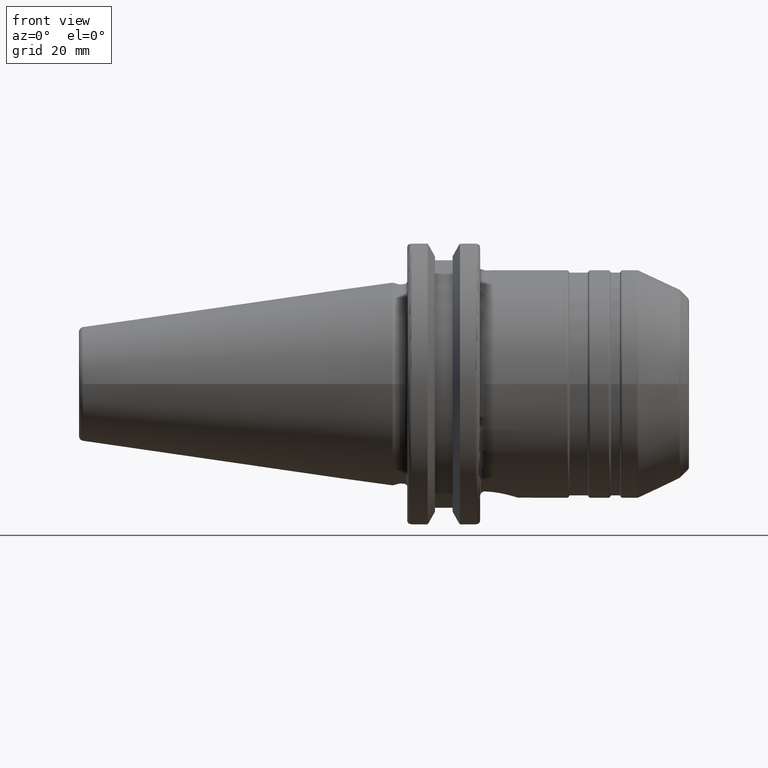
[diagram: clean part render]
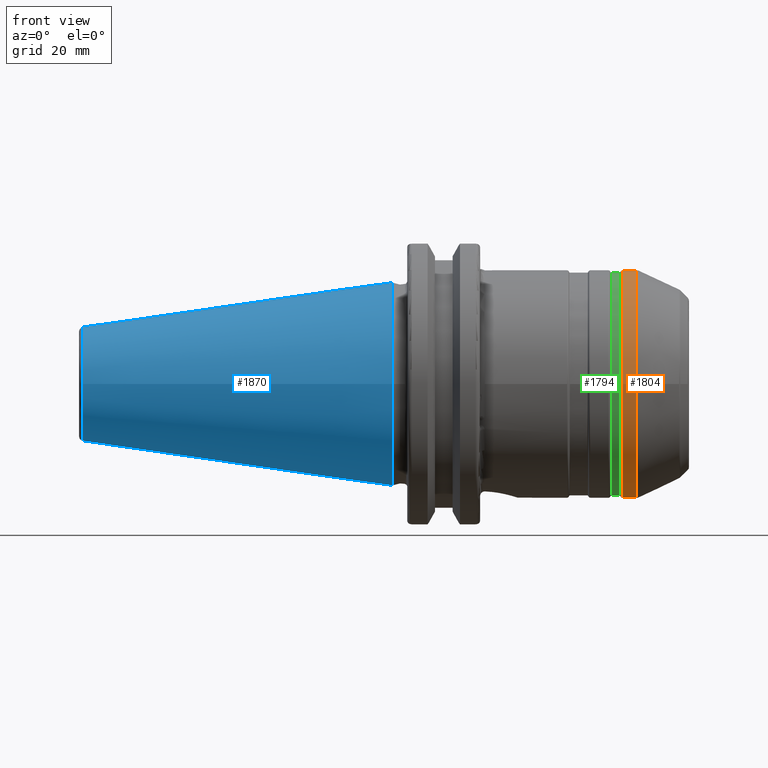
[diagram: same view with three faces highlighted in distinct colors, each labeled with its STEP entity id]
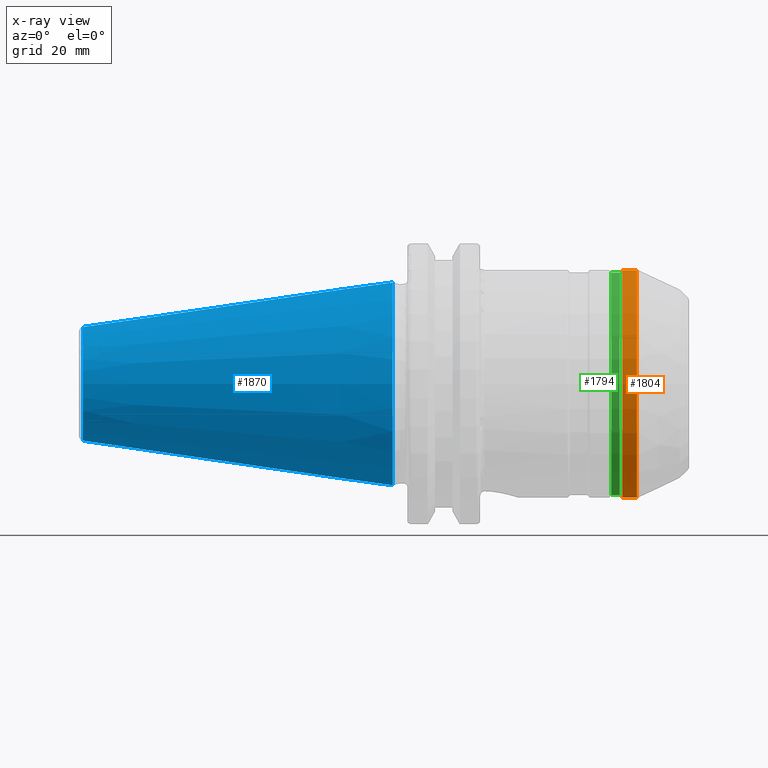
[diagram: x-ray of the same camera — body ghosted, the three highlighted faces saturated]
A machine part, front view with three faces highlighted in distinct colors.
The next image is the same camera in x-ray (body ghosted, the three faces saturated) — at least one of them is partly hidden behind the body in this view.
Their STEP definitions:

[orange] entity #1804 — the highlighted cylindrical surface (bore or boss wall) has radius 24.75 mm, axis along (1, 0, 0).
#167=LINE('',#2851,#256);
#256=VECTOR('',#2271,24.75);
#341=CYLINDRICAL_SURFACE('',#1964,24.75);
#381=FACE_OUTER_BOUND('',#487,.T.);
#487=EDGE_LOOP('',(#1263,#1264,#1265,#1266,#1267,#1268));
#625=CIRCLE('',#1961,24.75);
#626=CIRCLE('',#1962,24.75);
#628=CIRCLE('',#1965,24.75);
#629=CIRCLE('',#1966,24.75);
#744=VERTEX_POINT('',#2842);
#745=VERTEX_POINT('',#2843);
#746=VERTEX_POINT('',#2848);
#747=VERTEX_POINT('',#2849);
#943=EDGE_CURVE('',#744,#745,#625,.T.);
#944=EDGE_CURVE('',#745,#744,#626,.T.);
#946=EDGE_CURVE('',#746,#747,#628,.T.);
#947=EDGE_CURVE('',#746,#745,#167,.T.);
#948=EDGE_CURVE('',#747,#746,#629,.T.);
#1263=ORIENTED_EDGE('',*,*,#946,.F.);
#1264=ORIENTED_EDGE('',*,*,#947,.T.);
#1265=ORIENTED_EDGE('',*,*,#943,.F.);
#1266=ORIENTED_EDGE('',*,*,#944,.F.);
#1267=ORIENTED_EDGE('',*,*,#947,.F.);
#1268=ORIENTED_EDGE('',*,*,#948,.F.);
#1804=ADVANCED_FACE('',(#381),#341,.T.);
#1961=AXIS2_PLACEMENT_3D('',#2844,#2261,#2262);
#1962=AXIS2_PLACEMENT_3D('',#2845,#2263,#2264);
#1964=AXIS2_PLACEMENT_3D('',#2847,#2267,#2268);
#1965=AXIS2_PLACEMENT_3D('',#2850,#2269,#2270);
#1966=AXIS2_PLACEMENT_3D('',#2852,#2272,#2273);
#2261=DIRECTION('center_axis',(-1.,0.,0.));
#2262=DIRECTION('ref_axis',(0.,-1.,1.83697019872103E-16));
#2263=DIRECTION('center_axis',(-1.,0.,0.));
#2264=DIRECTION('ref_axis',(0.,-1.,1.83697019872103E-16));
#2267=DIRECTION('center_axis',(1.,0.,0.));
#2268=DIRECTION('ref_axis',(0.,1.,0.));
#2269=DIRECTION('center_axis',(1.,0.,0.));
#2270=DIRECTION('ref_axis',(0.,-1.,1.83697019872103E-16));
#2271=DIRECTION('',(-1.,0.,0.));
#2272=DIRECTION('center_axis',(1.,0.,0.));
#2273=DIRECTION('ref_axis',(0.,-1.,1.83697019872103E-16));
#2842=CARTESIAN_POINT('',(50.0196152422707,-3.0310008278897E-15,24.75));
#2843=CARTESIAN_POINT('',(50.0196152422707,-24.75,-3.0310008278897E-15));
#2844=CARTESIAN_POINT('Origin',(50.0196152422707,0.,0.));
#2845=CARTESIAN_POINT('Origin',(50.0196152422707,0.,0.));
#2847=CARTESIAN_POINT('Origin',(51.5872603612146,0.,0.));
#2848=CARTESIAN_POINT('',(53.1641509251914,-24.75,-3.0310008278897E-15));
#2849=CARTESIAN_POINT('',(53.1641509251914,-3.0310008278897E-15,24.75));
#2850=CARTESIAN_POINT('Origin',(53.1641509251914,0.,0.));
#2851=CARTESIAN_POINT('',(51.5872603612146,-24.75,-3.0310008278897E-15));
#2852=CARTESIAN_POINT('Origin',(53.1641509251914,0.,0.));

[blue] entity #1870 — the highlighted conical surface has half-angle 8.297 deg.
#153=CONICAL_SURFACE('',#2130,17.2484375,0.144812498238939);
#232=LINE('',#3782,#321);
#321=VECTOR('',#2668,17.2484375);
#447=FACE_OUTER_BOUND('',#566,.T.);
#566=EDGE_LOOP('',(#1640,#1641,#1642,#1643,#1644));
#699=CIRCLE('',#2124,12.3966635780937);
#700=CIRCLE('',#2125,12.3966635780937);
#704=CIRCLE('',#2131,22.225);
#889=VERTEX_POINT('',#3769);
#890=VERTEX_POINT('',#3770);
#893=VERTEX_POINT('',#3780);
#1152=EDGE_CURVE('',#889,#890,#699,.T.);
#1153=EDGE_CURVE('',#890,#889,#700,.T.);
#1157=EDGE_CURVE('',#893,#893,#704,.T.);
#1158=EDGE_CURVE('',#893,#890,#232,.T.);
#1640=ORIENTED_EDGE('',*,*,#1157,.F.);
#1641=ORIENTED_EDGE('',*,*,#1158,.T.);
#1642=ORIENTED_EDGE('',*,*,#1152,.F.);
#1643=ORIENTED_EDGE('',*,*,#1153,.F.);
#1644=ORIENTED_EDGE('',*,*,#1158,.F.);
#1870=ADVANCED_FACE('',(#447),#153,.T.);
#2124=AXIS2_PLACEMENT_3D('',#3771,#2652,#2653);
#2125=AXIS2_PLACEMENT_3D('',#3772,#2654,#2655);
#2130=AXIS2_PLACEMENT_3D('',#3779,#2664,#2665);
#2131=AXIS2_PLACEMENT_3D('',#3781,#2666,#2667);
#2652=DIRECTION('center_axis',(-1.,0.,0.));
#2653=DIRECTION('ref_axis',(0.,-1.,3.06161699786838E-17));
#2654=DIRECTION('center_axis',(-1.,0.,0.));
#2655=DIRECTION('ref_axis',(0.,-1.,3.06161699786838E-17));
#2664=DIRECTION('center_axis',(1.,0.,0.));
#2665=DIRECTION('ref_axis',(0.,1.,0.));
#2666=DIRECTION('center_axis',(1.,0.,0.));
#2667=DIRECTION('ref_axis',(0.,0.,-1.));
#2668=DIRECTION('',(-0.989532981063282,0.144306893071729,1.76724974695192E-17));
#3769=CARTESIAN_POINT('',(-67.3943068930717,-1.5181534371019E-15,12.3966635780937));
#3770=CARTESIAN_POINT('',(-67.3943068930718,-12.3966635780937,-1.5181534371019E-15));
#3771=CARTESIAN_POINT('Origin',(-67.3943068930717,0.,-1.89769179637738E-15));
#3772=CARTESIAN_POINT('Origin',(-67.3943068930717,0.,-1.89769179637738E-15));
#3779=CARTESIAN_POINT('Origin',(-34.125,0.,0.));
#3780=CARTESIAN_POINT('',(0.,-22.225,-2.72177751110499E-15));
#3781=CARTESIAN_POINT('Origin',(0.,0.,0.));
#3782=CARTESIAN_POINT('',(-34.125,-17.2484375,-2.11232437746682E-15));

[green] entity #1794 — the highlighted cylindrical surface (bore or boss wall) has radius 24.25 mm, axis along (1, 0, 0).
#161=LINE('',#2785,#250);
#250=VECTOR('',#2191,24.25);
#339=CYLINDRICAL_SURFACE('',#1928,24.25);
#371=FACE_OUTER_BOUND('',#477,.T.);
#477=EDGE_LOOP('',(#1203,#1204,#1205,#1206,#1207,#1208));
#597=CIRCLE('',#1923,24.25);
#601=CIRCLE('',#1927,24.25);
#602=CIRCLE('',#1929,24.25);
#603=CIRCLE('',#1930,24.25);
#720=VERTEX_POINT('',#2774);
#721=VERTEX_POINT('',#2775);
#724=VERTEX_POINT('',#2784);
#725=VERTEX_POINT('',#2786);
#909=EDGE_CURVE('',#720,#721,#597,.T.);
#913=EDGE_CURVE('',#721,#720,#601,.T.);
#914=EDGE_CURVE('',#720,#724,#161,.T.);
#915=EDGE_CURVE('',#725,#724,#602,.T.);
#916=EDGE_CURVE('',#724,#725,#603,.T.);
#1203=ORIENTED_EDGE('',*,*,#909,.F.);
#1204=ORIENTED_EDGE('',*,*,#914,.T.);
#1205=ORIENTED_EDGE('',*,*,#915,.F.);
#1206=ORIENTED_EDGE('',*,*,#916,.F.);
#1207=ORIENTED_EDGE('',*,*,#914,.F.);
#1208=ORIENTED_EDGE('',*,*,#913,.F.);
#1794=ADVANCED_FACE('',(#371),#339,.T.);
#1923=AXIS2_PLACEMENT_3D('',#2776,#2179,#2180);
#1927=AXIS2_PLACEMENT_3D('',#2782,#2187,#2188);
#1928=AXIS2_PLACEMENT_3D('',#2783,#2189,#2190);
#1929=AXIS2_PLACEMENT_3D('',#2787,#2192,#2193);
#1930=AXIS2_PLACEMENT_3D('',#2788,#2194,#2195);
#2179=DIRECTION('center_axis',(1.,0.,0.));
#2180=DIRECTION('ref_axis',(0.,-1.,1.83697019872103E-16));
#2187=DIRECTION('center_axis',(1.,0.,0.));
#2188=DIRECTION('ref_axis',(0.,-1.,1.83697019872103E-16));
#2189=DIRECTION('center_axis',(1.,0.,0.));
#2190=DIRECTION('ref_axis',(0.,1.,0.));
#2191=DIRECTION('',(-1.,0.,0.));
#2192=DIRECTION('center_axis',(-1.,0.,0.));
#2193=DIRECTION('ref_axis',(0.,-1.,1.83697019872103E-16));
#2194=DIRECTION('center_axis',(-1.,0.,0.));
#2195=DIRECTION('ref_axis',(0.,-1.,1.83697019872103E-16));
#2774=CARTESIAN_POINT('',(49.3845299461621,-24.25,-2.96976848793233E-15));
#2775=CARTESIAN_POINT('',(49.3845299461621,-2.96976848793233E-15,24.25));
#2776=CARTESIAN_POINT('Origin',(49.3845299461621,0.,0.));
#2782=CARTESIAN_POINT('Origin',(49.3845299461621,0.,0.));
#2783=CARTESIAN_POINT('Origin',(48.5,0.,0.));
#2784=CARTESIAN_POINT('',(47.6154700538379,-24.25,-2.96976848793233E-15));
#2785=CARTESIAN_POINT('',(48.5,-24.25,-2.96976848793233E-15));
#2786=CARTESIAN_POINT('',(47.6154700538379,-2.96976848793233E-15,24.25));
#2787=CARTESIAN_POINT('Origin',(47.6154700538379,0.,0.));
#2788=CARTESIAN_POINT('Origin',(47.6154700538379,0.,0.));